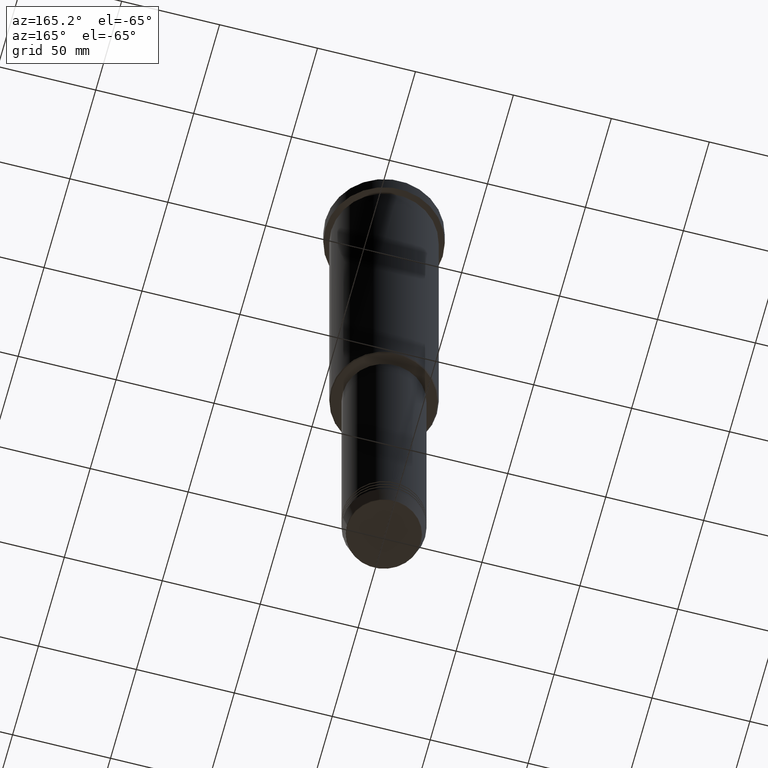
[diagram: clean part render]
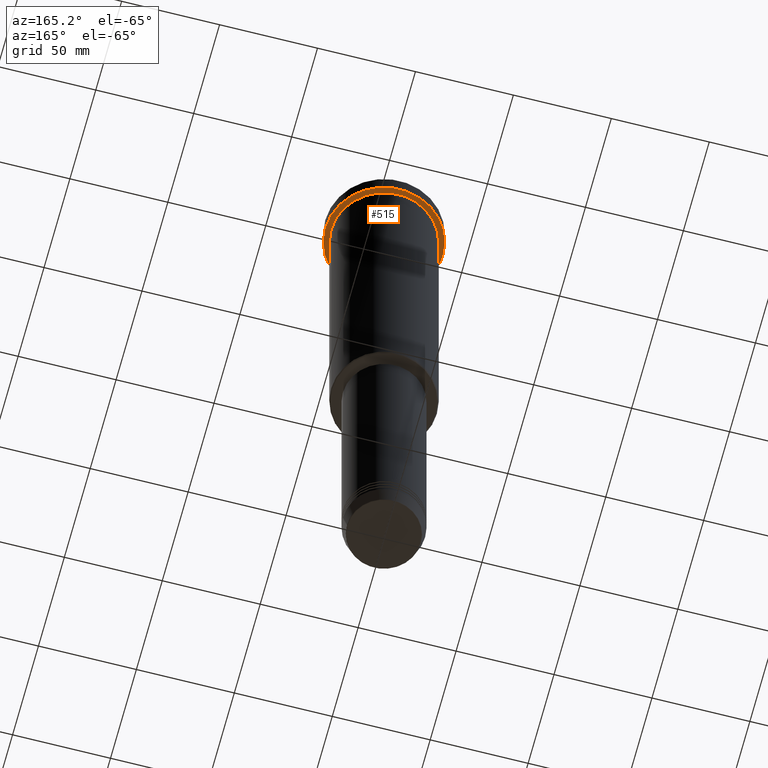
[diagram: same view with one face highlighted and labeled with its STEP entity id]
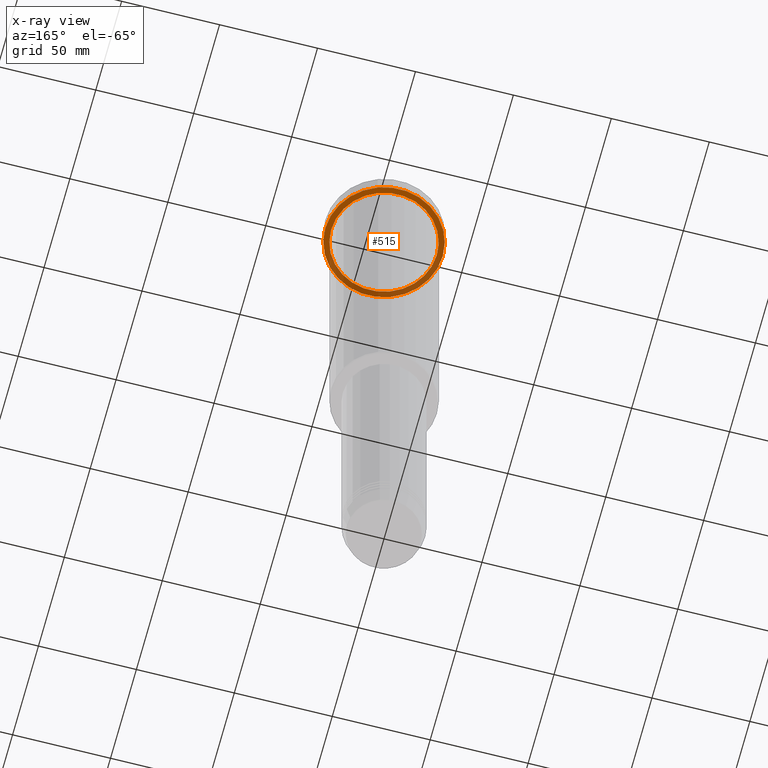
[diagram: x-ray of the same camera — body ghosted, the highlighted face saturated]
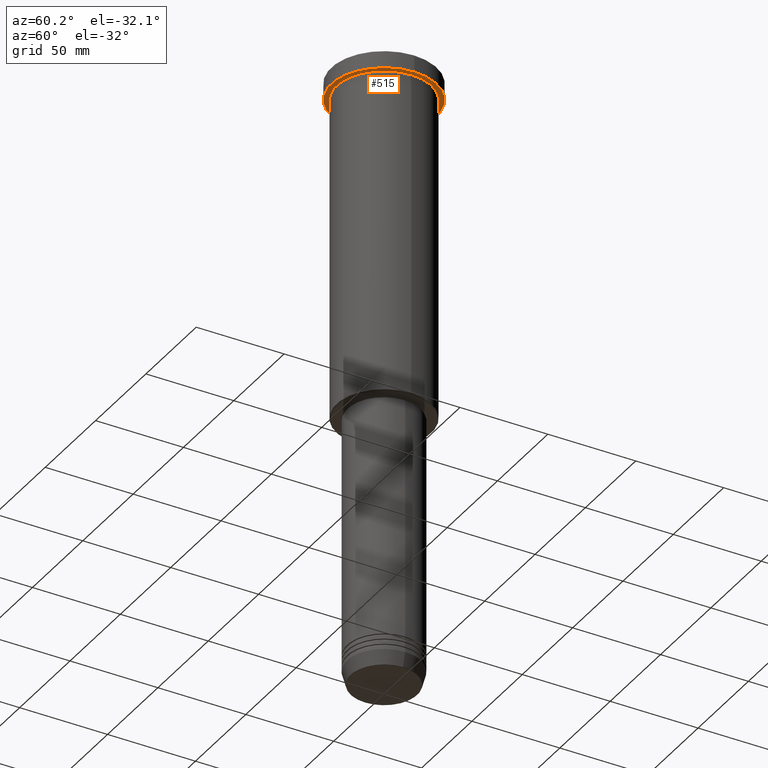
[diagram: same view with one face highlighted and labeled with its STEP entity id]
A machine part, auxiliary view. The second image highlights one B-rep face of the part: STEP entity #515.
The next image is the same camera in x-ray: the body ghosted, the highlighted face saturated — about 39% of this face is hidden behind the body in this view.
A second angle (auxiliary view) of the same face is appended — the face is thin or edge-on in the first view.
In plain terms, the highlighted planar face has unit normal (0, 0, -1).
Its self-contained STEP definition (entity closure, byte-faithful):
#17 = DIRECTION ( 'NONE',  ( -0.000000000000000000, -0.000000000000000000, 1.000000000000000000 ) ) ;
#39 = ORIENTED_EDGE ( 'NONE', *, *, #786, .F. ) ;
#53 = EDGE_CURVE ( 'NONE', #61, #397, #334, .T. ) ;
#61 = VERTEX_POINT ( 'NONE', #663 ) ;
#102 = DIRECTION ( 'NONE',  ( 1.000000000000000000, 0.000000000000000000, 0.000000000000000000 ) ) ;
#174 = VERTEX_POINT ( 'NONE', #941 ) ;
#195 = CARTESIAN_POINT ( 'NONE',  ( 0.000000000000000000, 0.000000000000000000, -9.999999999999992895 ) ) ;
#261 = EDGE_CURVE ( 'NONE', #324, #174, #1047, .T. ) ;
#268 = FACE_OUTER_BOUND ( 'NONE', #309, .T. ) ;
#300 = DIRECTION ( 'NONE',  ( -1.000000000000000000, 0.000000000000000000, 0.000000000000000000 ) ) ;
#309 = EDGE_LOOP ( 'NONE', ( #980, #39 ) ) ;
#324 = VERTEX_POINT ( 'NONE', #1137 ) ;
#334 = CIRCLE ( 'NONE', #480, 27.00000000000000355 ) ;
#353 = CIRCLE ( 'NONE', #505, 30.00000000000000000 ) ;
#397 = VERTEX_POINT ( 'NONE', #588 ) ;
#408 = EDGE_LOOP ( 'NONE', ( #635, #753 ) ) ;
#434 = CARTESIAN_POINT ( 'NONE',  ( 0.000000000000000000, 0.000000000000000000, -9.999999999999992895 ) ) ;
#450 = AXIS2_PLACEMENT_3D ( 'NONE', #916, #996, #300 ) ;
#480 = AXIS2_PLACEMENT_3D ( 'NONE', #195, #17, #902 ) ;
#494 = DIRECTION ( 'NONE',  ( 1.000000000000000000, 0.000000000000000000, 0.000000000000000000 ) ) ;
#505 = AXIS2_PLACEMENT_3D ( 'NONE', #434, #954, #494 ) ;
#515 = ADVANCED_FACE ( 'NONE', ( #904, #268 ), #1089, .T. ) ;
#588 = CARTESIAN_POINT ( 'NONE',  ( -27.00000000000000355, 0.000000000000000000, -9.999999999999992895 ) ) ;
#635 = ORIENTED_EDGE ( 'NONE', *, *, #1107, .T. ) ;
#639 = DIRECTION ( 'NONE',  ( 0.000000000000000000, 0.000000000000000000, -1.000000000000000000 ) ) ;
#663 = CARTESIAN_POINT ( 'NONE',  ( 27.00000000000000355, 3.306546357697854128E-15, -9.999999999999992895 ) ) ;
#668 = AXIS2_PLACEMENT_3D ( 'NONE', #889, #639, #804 ) ;
#674 = CARTESIAN_POINT ( 'NONE',  ( 0.000000000000000000, 0.000000000000000000, -9.999999999999992895 ) ) ;
#753 = ORIENTED_EDGE ( 'NONE', *, *, #53, .T. ) ;
#786 = EDGE_CURVE ( 'NONE', #174, #324, #353, .T. ) ;
#804 = DIRECTION ( 'NONE',  ( -1.000000000000000000, 0.000000000000000000, -0.000000000000000000 ) ) ;
#836 = CIRCLE ( 'NONE', #450, 27.00000000000000355 ) ;
#889 = CARTESIAN_POINT ( 'NONE',  ( 0.000000000000000000, 30.00000000000000000, -9.999999999999992895 ) ) ;
#902 = DIRECTION ( 'NONE',  ( -1.000000000000000000, 0.000000000000000000, 0.000000000000000000 ) ) ;
#904 = FACE_BOUND ( 'NONE', #408, .T. ) ;
#916 = CARTESIAN_POINT ( 'NONE',  ( 0.000000000000000000, 0.000000000000000000, -9.999999999999992895 ) ) ;
#941 = CARTESIAN_POINT ( 'NONE',  ( -30.00000000000000000, 3.673940397442059178E-15, -9.999999999999992895 ) ) ;
#951 = AXIS2_PLACEMENT_3D ( 'NONE', #674, #1036, #102 ) ;
#954 = DIRECTION ( 'NONE',  ( -0.000000000000000000, -0.000000000000000000, 1.000000000000000000 ) ) ;
#980 = ORIENTED_EDGE ( 'NONE', *, *, #261, .F. ) ;
#996 = DIRECTION ( 'NONE',  ( -0.000000000000000000, -0.000000000000000000, 1.000000000000000000 ) ) ;
#1036 = DIRECTION ( 'NONE',  ( -0.000000000000000000, -0.000000000000000000, 1.000000000000000000 ) ) ;
#1047 = CIRCLE ( 'NONE', #951, 30.00000000000000000 ) ;
#1089 = PLANE ( 'NONE',  #668 ) ;
#1107 = EDGE_CURVE ( 'NONE', #397, #61, #836, .T. ) ;
#1137 = CARTESIAN_POINT ( 'NONE',  ( 30.00000000000000000, 0.000000000000000000, -9.999999999999992895 ) ) ;